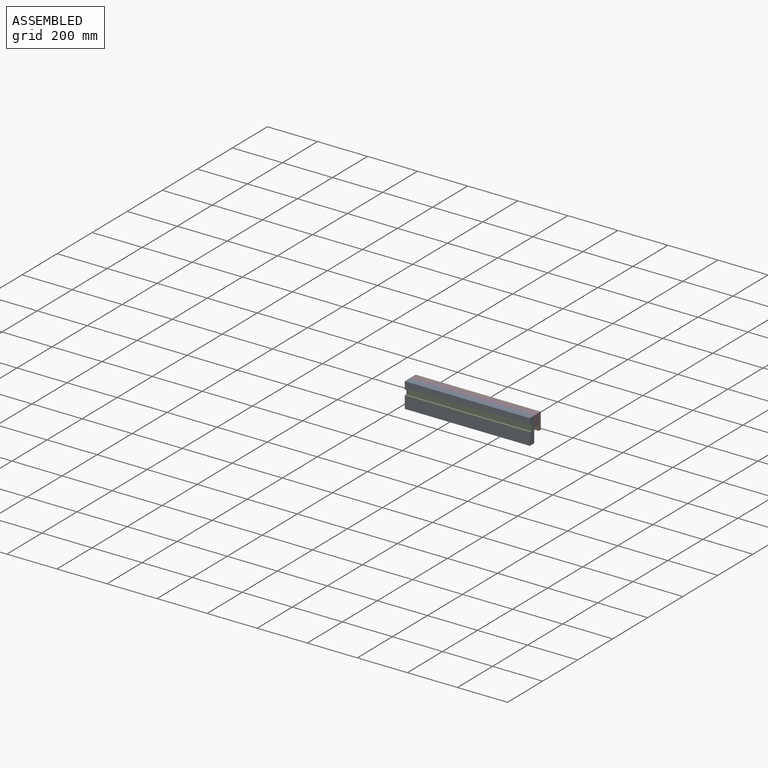
[diagram: assembled view]
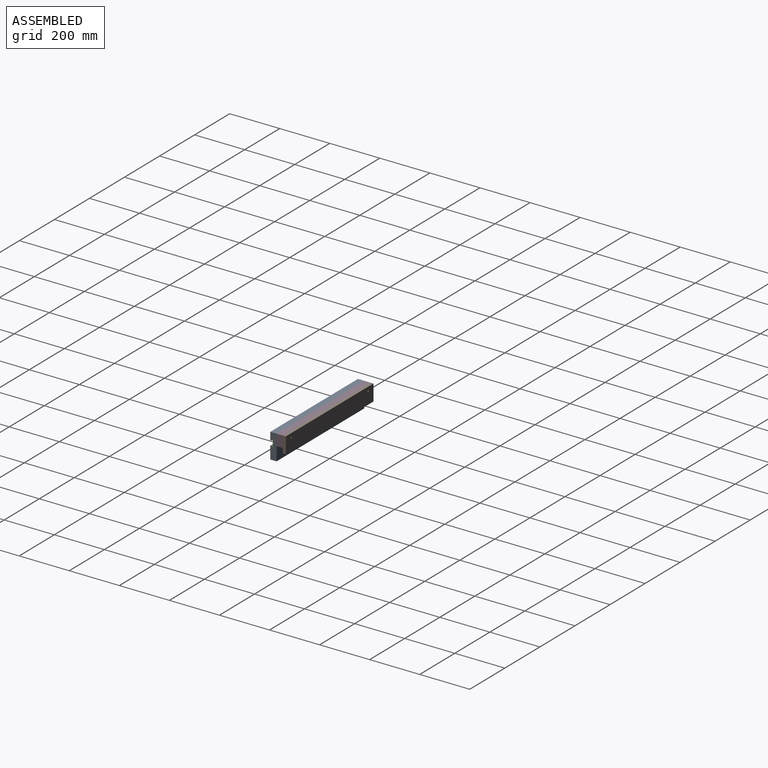
[diagram: assembled view, second angle]
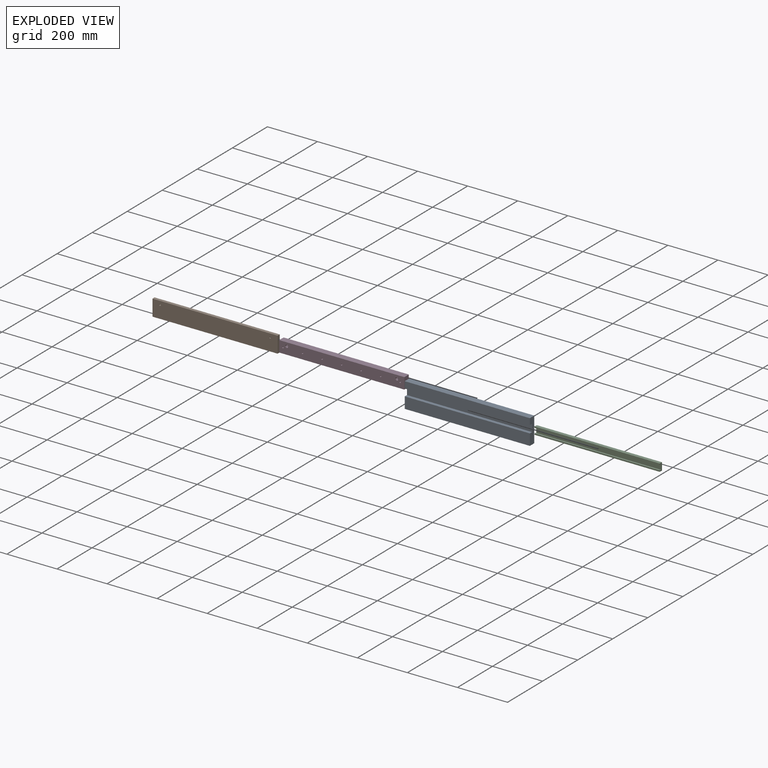
[diagram: exploded view]
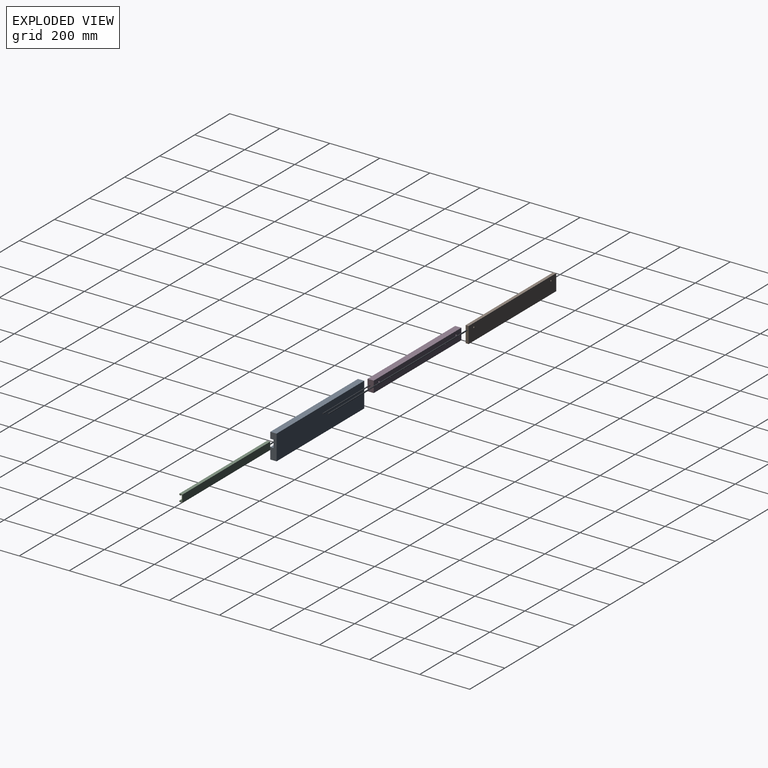
[diagram: exploded view, second angle]
ASSEMBLY  parts=4 mates=3
PART A: 10 faces, bbox 500x25x100 mm
  f0: plane 500x100mm, normal (0,-1,0), area 50000mm2, adj f1,f7,f8,f9
  f1: plane 500x25mm, normal (0,0,-1), area 12500mm2, adj f0,f2,f8,f9
  f2: plane 500x45mm, normal (0,1,0), area 22500mm2, adj f1,f3,f8,f9
  f3: plane 500x12.8mm, normal (0,0,1), area 6400mm2, adj f2,f4,f8,f9
  f4: plane 500x30mm, normal (0,1,0), area 15000mm2, adj f3,f5,f8,f9
  f5: plane 500x12.8mm, normal (0,0,-1), area 6400mm2, adj f4,f6,f8,f9
  f6: plane 500x25mm, normal (0,1,0), area 12500mm2, adj f5,f7,f8,f9
  f7: plane 500x25mm, normal (0,0,1), area 12500mm2, adj f0,f6,f8,f9
  f8: plane 100x25mm, normal (1,0,0), area 2116mm2, adj f0,f1,f2,f3,f4,f5,f6,f7
  f9: plane 100x25mm, normal (-1,0,0), area 2116mm2, adj f0,f1,f2,f3,f4,f5,f6,f7
PART B: 8 faces, bbox 500x12x65 mm
  f0: plane 500x65mm, normal (0,-1,0), area 32443.5mm2, adj f1,f3,f4,f5,f6,f7
  f1: plane 500x12mm, normal (0,0,-1), area 6000mm2, adj f0,f2,f4,f5
  f2: plane 500x65mm, normal (0,1,0), area 32443.5mm2, adj f1,f3,f4,f5,f6,f7
  f3: plane 500x12mm, normal (0,0,1), area 6000mm2, adj f0,f2,f4,f5
  f4: plane 65x12mm, normal (1,0,0), area 780mm2, adj f0,f1,f2,f3
  f5: plane 65x12mm, normal (-1,0,0), area 780mm2, adj f0,f1,f2,f3
  f6: cylinder r=3mm len=12mm, axis (0,-1,0), area 226.2mm2, adj f0,f2
  f7: cylinder r=3mm len=12mm, axis (0,-1,0), area 226.2mm2, adj f0,f2
PART C: 14 faces, bbox 500x30x12.8 mm
  f0: plane 500x4.2mm, normal (0,1,0), area 2100mm2, adj f1,f11,f12,f13
  f1: plane 500x2.1mm, normal (0,0,-1), area 1050mm2, adj f0,f2,f12,f13
  f2: plane 500x5.4mm, normal (0,1,0), area 2700mm2, adj f1,f3,f12,f13
  f3: plane 500x5.35mm, normal (0,0,1), area 2675mm2, adj f2,f4,f12,f13
  f4: plane 500x12.8mm, normal (0,-1,0), area 6400mm2, adj f3,f5,f12,f13
  f5: plane 500x30mm, normal (0,0,-1), area 15000mm2, adj f4,f6,f12,f13
  f6: plane 500x12.8mm, normal (0,1,0), area 6400mm2, adj f5,f7,f12,f13
  f7: plane 500x5.35mm, normal (0,0,1), area 2675mm2, adj f6,f8,f12,f13
  f8: plane 500x5.4mm, normal (0,-1,0), area 2700mm2, adj f7,f9,f12,f13
  f9: plane 500x2.1mm, normal (0,0,-1), area 1050mm2, adj f8,f10,f12,f13
  f10: plane 500x4.2mm, normal (0,-1,0), area 2100mm2, adj f9,f11,f12,f13
  f11: plane 500x23.5mm, normal (0,0,1), area 11750mm2, adj f0,f10,f12,f13
  f12: plane 30x12.8mm, normal (1,0,0), area 181.1mm2, adj f0,f1,f2,f3,f4,f5,f6,f7
  f13: plane 30x12.8mm, normal (-1,0,0), area 181.1mm2, adj f0,f1,f2,f3,f4,f5,f6,f7
PART D: 36 faces, bbox 500x25x45 mm
  f0: plane 500x45mm, normal (0,-1,0), area 22128.9mm2, adj f3,f5,f6,f7,f8,f9,f10,f11
  f1: cylinder r=3mm len=13mm, axis (0,-1,0), area 245mm2, adj f4,f21
  f2: cylinder r=3mm len=13mm, axis (0,-1,0), area 245mm2, adj f4,f14
  f3: plane 500x25mm, normal (0,0,-1), area 12500mm2, adj f0,f4,f6,f7
  f4: plane 500x45mm, normal (0,1,0), area 22355.5mm2, adj f1,f2,f3,f5,f6,f7,f22,f24
  f5: plane 500x25mm, normal (0,0,1), area 12500mm2, adj f0,f4,f6,f7
  f6: plane 45x25mm, normal (1,0,0), area 1125mm2, adj f0,f3,f4,f5
  f7: plane 45x25mm, normal (-1,0,0), area 1125mm2, adj f0,f3,f4,f5
  f8: plane 12x5.77mm, normal (0,0,-1), area 69.3mm2, adj f0,f9,f13,f14
  f9: plane 12x5mm, normal (0.87,0,-0.5), area 69.3mm2, adj f0,f8,f10,f14
  f10: plane 12x5mm, normal (0.87,0,0.5), area 69.3mm2, adj f0,f9,f11,f14
  f11: plane 12x5.77mm, normal (0,0,1), area 69.3mm2, adj f0,f10,f12,f14
  f12: plane 12x5mm, normal (-0.87,0,0.5), area 69.3mm2, adj f0,f11,f13,f14
  f13: plane 12x5mm, normal (-0.87,0,-0.5), area 69.3mm2, adj f0,f8,f12,f14
  f14: plane 11.55x10mm, normal (0,-1,0), area 58.3mm2, adj f2,f8,f9,f10,f11,f12,f13
  f15: plane 12x5.77mm, normal (0,0,-1), area 69.3mm2, adj f0,f16,f20,f21
  f16: plane 12x5mm, normal (0.87,0,-0.5), area 69.3mm2, adj f0,f15,f17,f21
  f17: plane 12x5mm, normal (0.87,0,0.5), area 69.3mm2, adj f0,f16,f18,f21
  f18: plane 12x5.77mm, normal (0,0,1), area 69.3mm2, adj f0,f17,f19,f21
  f19: plane 12x5mm, normal (-0.87,0,0.5), area 69.3mm2, adj f0,f18,f20,f21
  f20: plane 12x5mm, normal (-0.87,0,-0.5), area 69.3mm2, adj f0,f15,f19,f21
  f21: plane 11.55x10mm, normal (0,-1,0), area 58.3mm2, adj f1,f15,f16,f17,f18,f19,f20
  f22: cylinder r=2mm len=23.85mm, axis (0,-1,0), area 299.7mm2, adj f4,f23
  f23: cone r=2mm half-angle=41deg, axis (0,-1,0), area 23.9mm2, adj f0,f22
  f24: cylinder r=2mm len=23.85mm, axis (0,-1,0), area 299.7mm2, adj f4,f25
  f25: cone r=2mm half-angle=41deg, axis (0,-1,0), area 23.9mm2, adj f0,f24
  f26: cylinder r=2mm len=23.85mm, axis (0,-1,0), area 299.7mm2, adj f4,f27
  f27: cone r=2mm half-angle=41deg, axis (0,-1,0), area 23.9mm2, adj f0,f26
  f28: cylinder r=2mm len=23.85mm, axis (0,-1,0), area 299.7mm2, adj f4,f29
  f29: cone r=2mm half-angle=41deg, axis (0,-1,0), area 23.9mm2, adj f0,f28
  f30: cylinder r=2mm len=23.85mm, axis (0,-1,0), area 299.7mm2, adj f4,f31
  f31: cone r=2mm half-angle=41deg, axis (0,-1,0), area 23.9mm2, adj f0,f30
  f32: cylinder r=2mm len=23.85mm, axis (0,-1,0), area 299.7mm2, adj f4,f33
  f33: cone r=2mm half-angle=41deg, axis (0,-1,0), area 23.9mm2, adj f0,f32
  f34: cylinder r=2mm len=23.85mm, axis (0,-1,0), area 299.7mm2, adj f4,f35
  f35: cone r=2mm half-angle=41deg, axis (0,-1,0), area 23.9mm2, adj f0,f34
PLACE A rot(axis=(0,0,1),180deg) t=(930.73,67.06,-45.16)mm
PLACE B rot(axis=(0,0,-1),0deg) t=(430.73,110.56,-27.66)mm
PLACE C rot(axis=(1,0,0),90deg) t=(430.73,67.36,-50.16)mm
PLACE D rot(axis=(0,0,-1),0deg) t=(430.73,92.06,-17.66)mm
MATE fastened D.f6 <-> A.f9  axis (1,0,0) through (930.73,79.56,4.84)mm
MATE fastened C.f12 <-> A.f9  axis (1,0,0) through (930.73,67.36,-20.16)mm
MATE fastened B.f4 <-> D.f6  axis (1,0,0) through (930.73,104.56,4.84)mm
